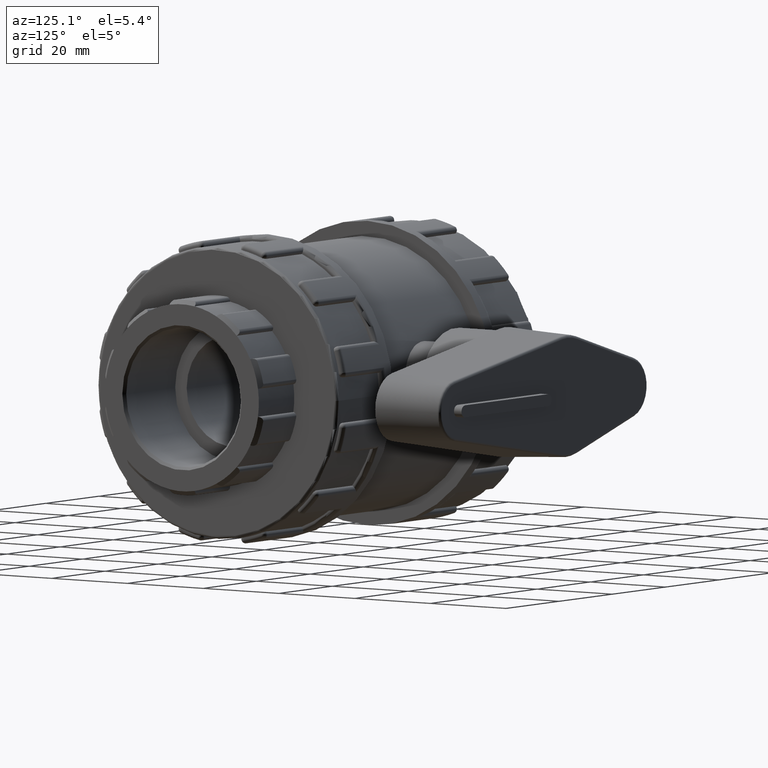
[diagram: clean part render]
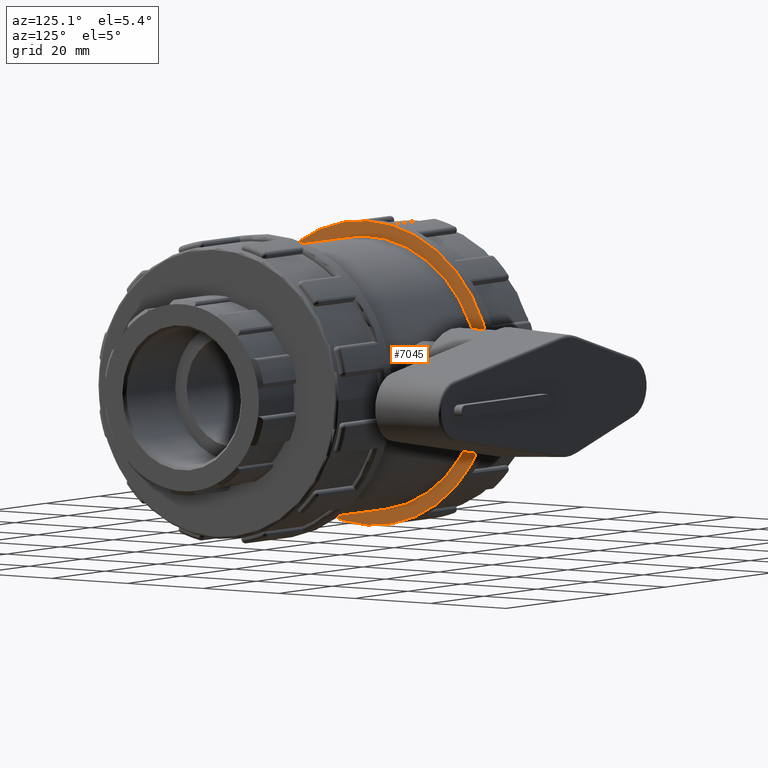
[diagram: same view with one face highlighted and labeled with its STEP entity id]
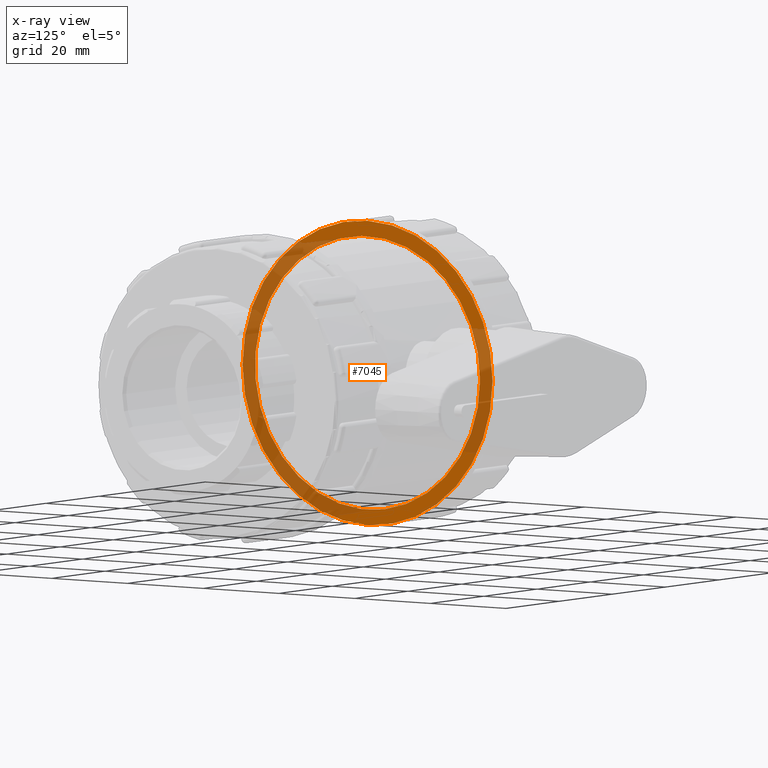
[diagram: x-ray of the same camera — body ghosted, the highlighted face saturated]
A machine part, auxiliary view. The second image highlights one B-rep face of the part: STEP entity #7045.
The next image is the same camera in x-ray: the body ghosted, the highlighted face saturated — about 54% of this face is hidden behind the body in this view.
In plain terms, the highlighted planar face has unit normal (1, 0, 0).
Its self-contained STEP definition (entity closure, byte-faithful):
#219=FACE_BOUND('',#1302,.T.);
#336=PLANE('',#7996);
#848=FACE_OUTER_BOUND('',#1301,.T.);
#1301=EDGE_LOOP('',(#6412));
#1302=EDGE_LOOP('',(#6413));
#2293=CIRCLE('',#7382,33.);
#2621=CIRCLE('',#7997,29.7);
#2846=VERTEX_POINT('',#11542);
#3265=VERTEX_POINT('',#14005);
#3618=EDGE_CURVE('',#2846,#2846,#2293,.T.);
#4317=EDGE_CURVE('',#3265,#3265,#2621,.T.);
#6412=ORIENTED_EDGE('',*,*,#3618,.T.);
#6413=ORIENTED_EDGE('',*,*,#4317,.F.);
#7045=ADVANCED_FACE('',(#848,#219),#336,.T.);
#7382=AXIS2_PLACEMENT_3D('',#11543,#8783,#8784);
#7996=AXIS2_PLACEMENT_3D('',#14004,#10290,#10291);
#7997=AXIS2_PLACEMENT_3D('',#14006,#10292,#10293);
#8783=DIRECTION('center_axis',(1.,0.,0.));
#8784=DIRECTION('ref_axis',(0.,0.,-1.));
#10290=DIRECTION('center_axis',(1.,0.,0.));
#10291=DIRECTION('ref_axis',(0.,0.,-1.));
#10292=DIRECTION('center_axis',(1.,0.,0.));
#10293=DIRECTION('ref_axis',(0.,0.,-1.));
#11542=CARTESIAN_POINT('',(-18.7,33.,0.));
#11543=CARTESIAN_POINT('Origin',(-18.7,0.,0.));
#14004=CARTESIAN_POINT('Origin',(-18.7,29.7,0.));
#14005=CARTESIAN_POINT('',(-18.7,29.7,0.));
#14006=CARTESIAN_POINT('Origin',(-18.7,0.,0.));